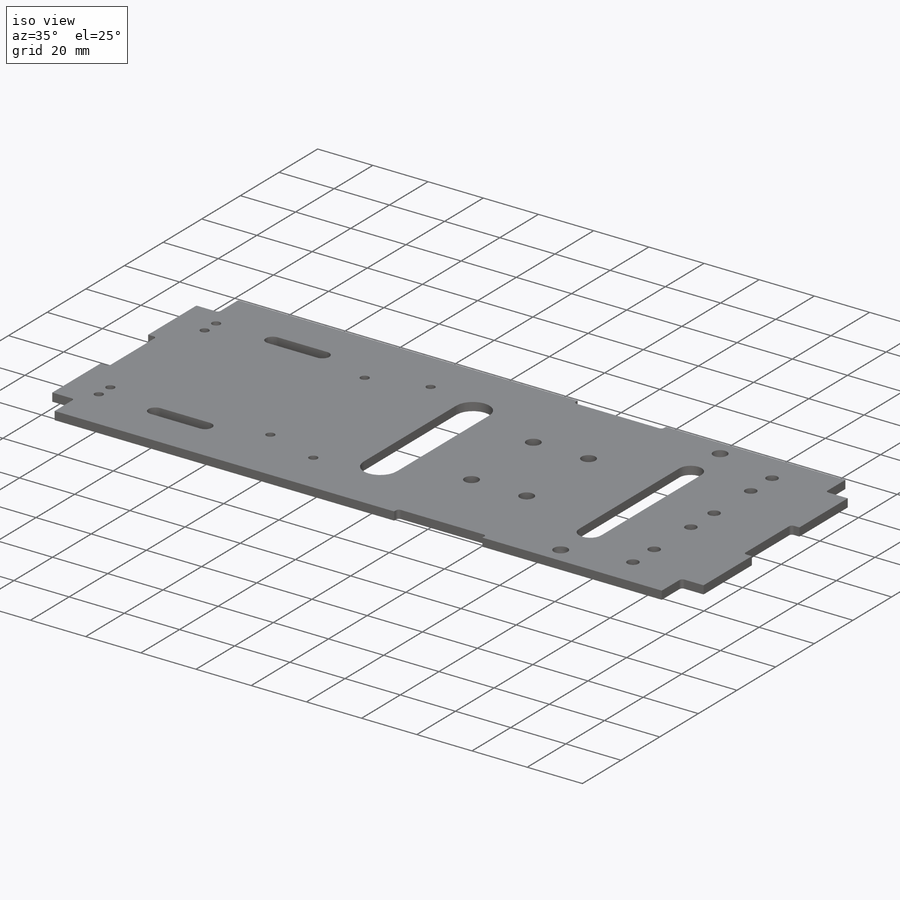
[diagram: iso view]
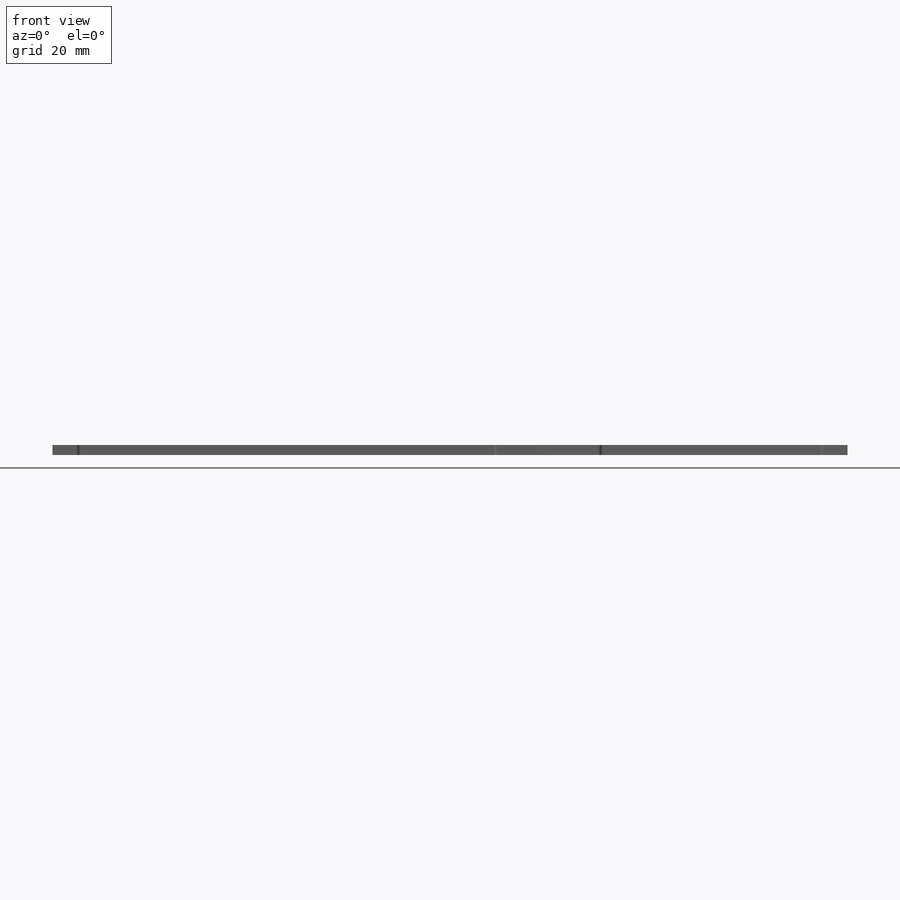
[diagram: front view]
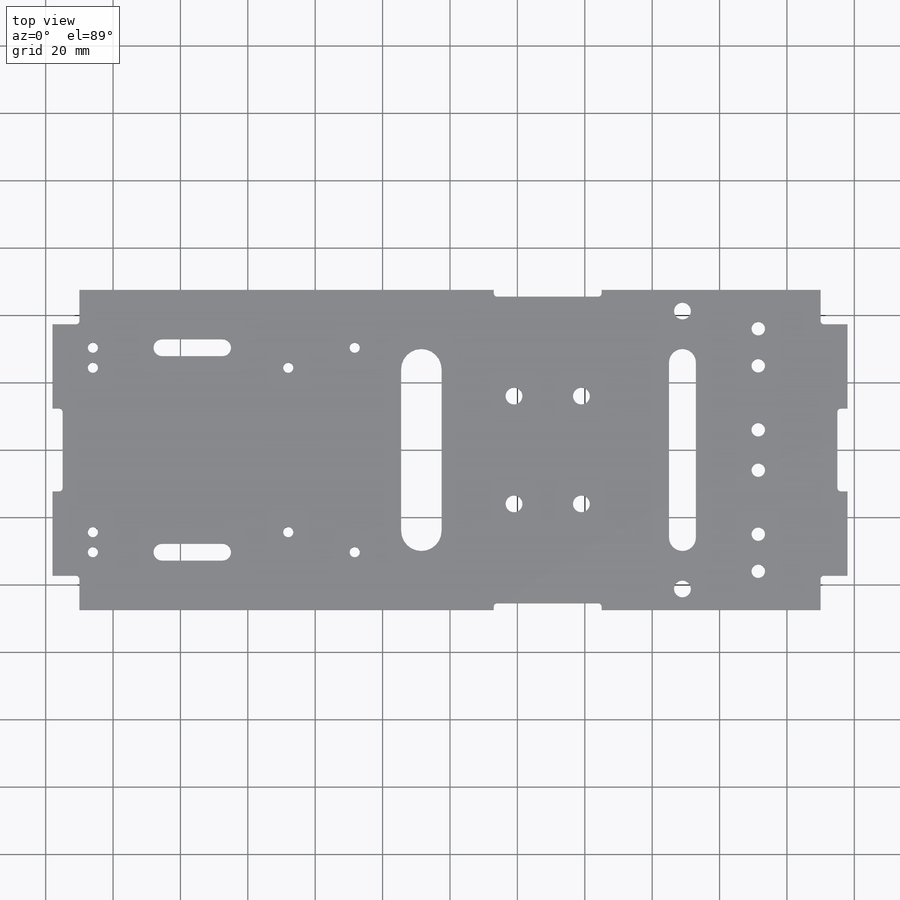
[diagram: top view]
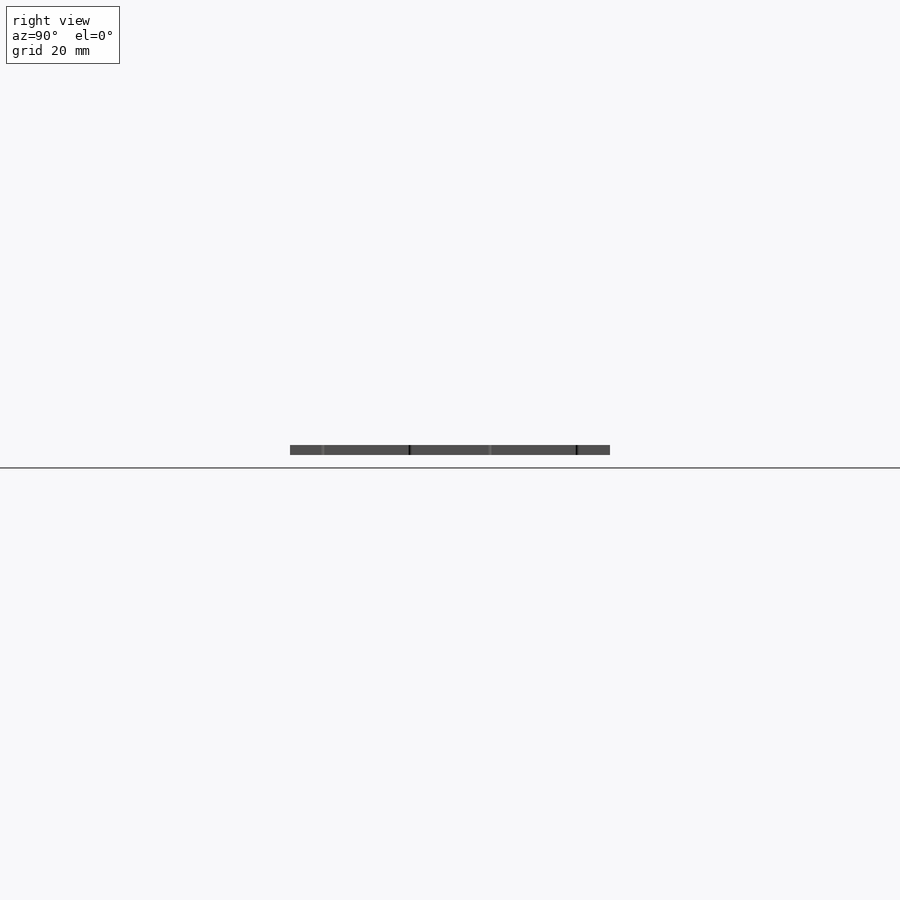
[diagram: right view]
SOLIDWORKS PART (.sldprt)
format: sldprt  version: not decoded by parser v0  size: 577,536 bytes
history: native  units: mm
features: sketch x11, cut_extrude x10, fillet x9, plane x3, material x1, extrude x1 (+10 scaffold rows collapsed)
feature tree (45):
  scaffold x10  (default folders/planes/origin — collapsed)
  material  "材质 <未指定>"
  plane  "前视"
  plane  "上视"
  plane  "右视"
  sketch  "草图4"  dims[D1=236.0mm D2=95.0mm]
  extrude  "凸台-拉伸3"  Depth=3mm
  sketch  "草图5"  dims[D1=3.0mm D2=12.3mm]
  cut_extrude  "切除-拉伸1"  [1 undecoded]
  sketch  "草图6"  dims[D1=25.0mm D2=8.0mm]
  cut_extrude  "切除-拉伸2"  [1 undecoded]
  fillet  "圆角2"  Radius=1mm
  fillet  "圆角5"  Radius=1mm
  sketch  "草图7"  dims[D1=12.3mm]
  cut_extrude  "切除-拉伸3"  [1 undecoded]
  fillet  "圆角6"  Radius=1mm
  sketch  "草图8"  dims[D1=37.3mm D2=8.0mm]
  cut_extrude  "切除-拉伸5"  [1 undecoded]
  fillet  "圆角9"  Radius=1mm
  sketch  "草图10"  dims[D1=12.3mm D2=3.0mm]
  cut_extrude  "切除-拉伸6"  [1 undecoded]
  sketch  "草图11"  dims[D1=12.3mm]
  cut_extrude  "切除-拉伸7"  [1 undecoded]
  sketch  "草图12"  dims[D1=37.3mm D2=8.0mm]
  cut_extrude  "切除-拉伸8"  [1 undecoded]
  sketch  "草图13"  dims[D1=37.3mm D2=8.0mm]
  cut_extrude  "切除-拉伸10"  [1 undecoded]
  fillet  "圆角13"  Radius=1mm
  fillet  "圆角15"  Radius=1mm
  fillet  "圆角18"  Radius=1mm
  fillet  "圆角19"  Radius=1mm
  sketch  "草图14"  dims[c1.D1=~3.061143mm c1.D3=3.0mm c1.D4=~1.911631mm c1.D6=3.0mm c1.D8=~1.991093mm c1.D13=~2.719905mm c1.D15=~2.150776mm c1.D16=~2.456229mm c1.D17=~3.981543mm c1.D19=~1.755196mm c1.D21=~1.685559mm c1.D25=3.0mm c1.D26=3.0mm c1.D27=~2.584245mm c1.D30=5.0mm c1.D33=3.0mm c1.D36=2.4mm c1.D39=1.5mm c2.D30=5.0mm c2.D31=5.0mm c2.D1=30.35mm c2.D2=16.5mm c2.D4=30.35mm c2.D5=77.72mm c2.D7=24.4mm c2.D8=58.0mm c2.D9=97.5mm c2.D10=12.0mm c2.D11=16.5mm c2.D12=48.0mm c2.D13=6.0mm c2.D14=23.5mm c2.D15=25.0mm c2.D16=36.0mm c2.D17=46.0mm c2.D18=41.25mm c2.D19=16.0mm c2.D20=30.0mm c2.D21=50.0mm c2.D22=8.0mm c2.D23=~52.342526mm c3.D23=90.0deg c4.D23=52.0mm c4.D24=12.0mm c4.D11=12.0mm c4.D27=30.35mm c4.D28=5.0mm c4.D29=41.5mm c4.D30=25.0mm c4.D31=46.0mm c4.D32=22.0mm c4.D33=20.0mm c4.D34=20.0mm c4.D35=93.0mm c4.D36=16.0mm c4.D37=16.0mm c4.D38=130.0mm c5.D30=22.0mm c5.D31=~6.384267mm c6.D31=90.0deg c7.D31=10.0mm c7.D32=22.0mm c7.D33=10.0mm c8.D33=90.0deg c9.D33=10.0mm c9.D34=20.0mm c9.D35=~6.291519mm c10.D35=90.0deg c11.D35=6.0mm c11.D36=145.0mm c11.D37=26.5mm c11.D38=26.5mm c11.D39=34.0mm c11.D32=18.0mm]
  cut_extrude  "切除-拉伸11"  [1 undecoded]
  sketch  "草图15"  dims[c1.D1=4.0mm c1.D2=81.0mm c1.D3=3.0mm c2.D1=4.0mm c2.D3=32.0mm]
  cut_extrude  "切除-拉伸12"  [1 undecoded]
  fillet  "圆角20"  Radius=1mm
decode coverage: 21 of 31 modeling features carry decoded parameters
note: ~ marks probable driven/reference dimensions
note: 10 parameter values undecoded
summary: no parameter record found for 10 features
note: suppression state not decoded; provenance and decode notes live in map.json
